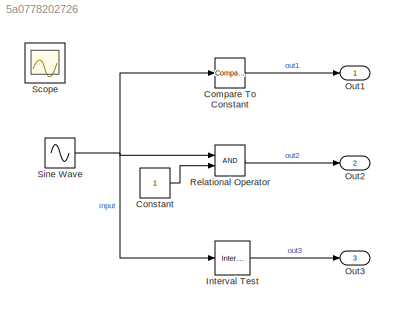
MODEL slx_5a0778202726
KIND model
CONFIG AbsTol = auto
CONFIG EnableMultiTasking = on
CONFIG FixedStep = auto
CONFIG MaxStep = auto
CONFIG MinStep = auto
CONFIG RelTol = 1e-3
CONFIG SampleTimeConstraint = Unconstrained
CONFIG Solver = VariableStepAuto
CONFIG SolverName = VariableStepAuto
CONFIG StartTime = 0.0
CONFIG StopTime = 10.0
BLOCK [Reference] Compare To Constant  REF=simulink/Logic and Bit
Operations/Compare
To Constant
  Ports = [1, 1]
  SourceBlock = simulink/Logic and Bit\nOperations/Compare\nTo Constant
  SourceProductBaseCode = SL
  SourceProductName = Simulink
  SourceType = Compare To Constant
BLOCK [Constant] Constant
BLOCK [Reference] Interval Test  REF=simulink/Logic and Bit
Operations/Interval Test
  AttributesFormatString = Upper Limit: %<uplimit>\nLower Limit: %<lowlimit>
  Ports = [1, 1]
  SourceBlock = simulink/Logic and Bit\nOperations/Interval Test
  SourceProductBaseCode = SL
  SourceProductName = Simulink
  SourceType = Interval Test
BLOCK [Outport] Out1
  IconDisplay = Port number
BLOCK [Outport] Out2
  IconDisplay = Port number
  Port = 2
BLOCK [Outport] Out3
  IconDisplay = Port number
  Port = 3
BLOCK [RelationalOperator] Relational Operator
  InputSameDT = off
  OutDataTypeStr = boolean
  Ports = [2, 1]
BLOCK [Scope] Scope
  Floating = off
  IOType = viewer
  NumInputPorts = 1
  Ports = []
  ScopeSpecificationString = Simulink.scopes.TimeScopeBlockCfg('CurrentConfiguration', extmgr.ConfigurationSet(extmgr.Configuration('Core','General UI',true,'FigureColor',[0.156862745098039 0.156862745098039 0.156862745098039]),extmgr.Configuration('Core','Source UI',true),extmgr.Configuration('Sources','WiredSimulink',true,'DataLoggingLimitDataPoints',true,'DataLoggingMaxPoints','7500','DataLoggingSaveFormat','Array','DataLo...<+3735ch>
BLOCK [Sin] Sine Wave
  Amplitude = 2
  AttributesFormatString = Amplitude:%<Amplitude>
  Ports = [0, 1]
  SampleTime = 0
LINE Compare To Constant:1 -> Out1:1
LINE Constant:1 -> Relational Operator:2
LINE Interval Test:1 -> Out3:1
LINE Relational Operator:1 -> Out2:1
NET Sine Wave:1 -> Compare To Constant:1, Interval Test:1, Relational Operator:1
note: NET lines group one-source signal fan-out (src -> all destinations, sorted); 1:1 wires keep LINE
